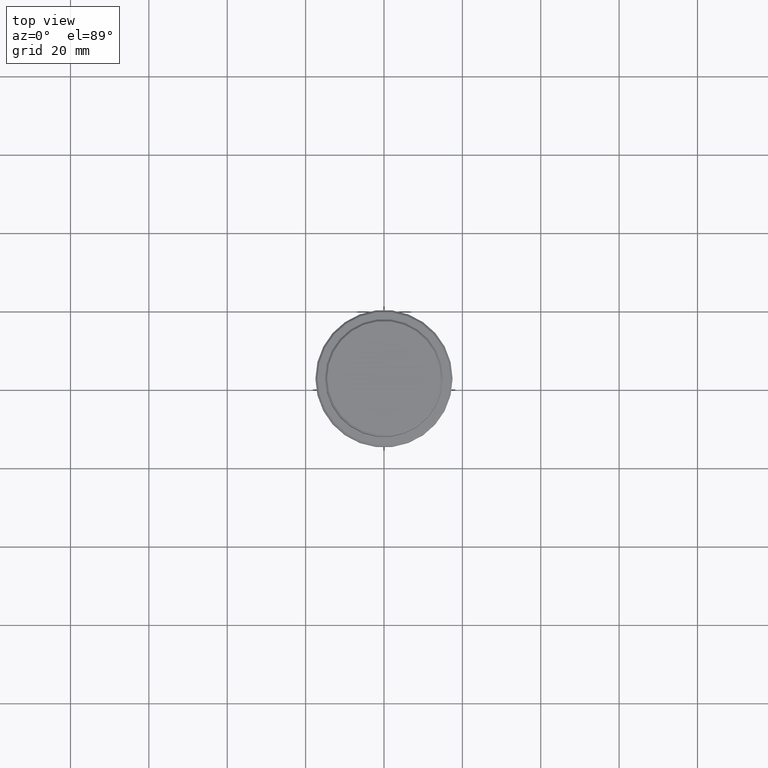
[diagram: clean part render]
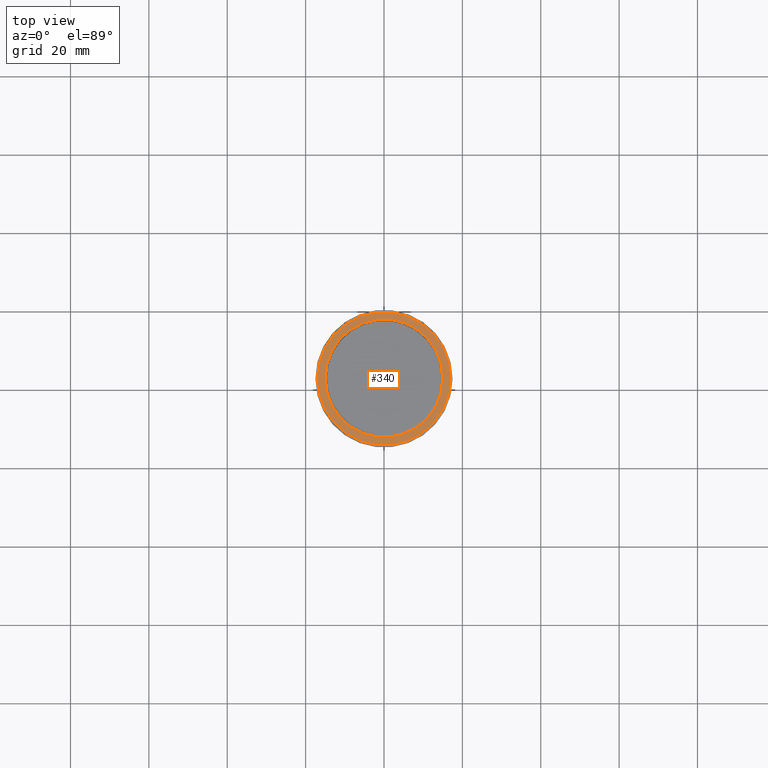
[diagram: same view with one face highlighted and labeled with its STEP entity id]
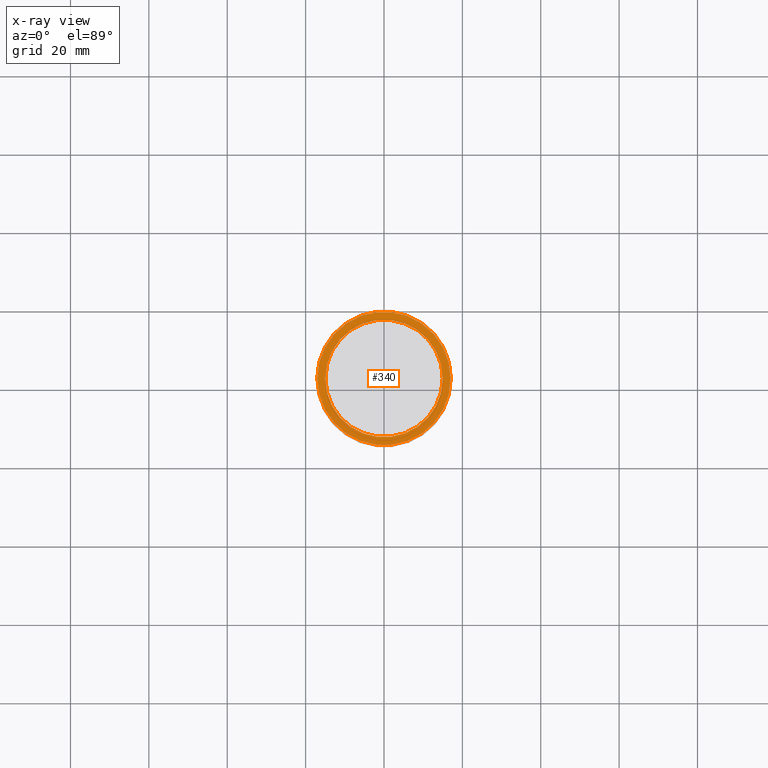
[diagram: x-ray of the same camera — body ghosted, the highlighted face saturated]
A machine part, top view. The second image highlights one B-rep face of the part: STEP entity #340.
The next image is the same camera in x-ray: the body ghosted, the highlighted face saturated — about 0% of this face is hidden behind the body in this view.
In plain terms, the highlighted planar face has unit normal (0, -0, 1).
Its self-contained STEP definition (entity closure, byte-faithful):
#38 = EDGE_CURVE ( 'NONE', #339, #1029, #1040, .T. ) ;
#62 = AXIS2_PLACEMENT_3D ( 'NONE', #1393, #735, #968 ) ;
#133 = CIRCLE ( 'NONE', #882, 14.99999999999999289 ) ;
#166 = VERTEX_POINT ( 'NONE', #264 ) ;
#212 = FACE_OUTER_BOUND ( 'NONE', #684, .T. ) ;
#227 = EDGE_CURVE ( 'NONE', #355, #166, #657, .T. ) ;
#244 = AXIS2_PLACEMENT_3D ( 'NONE', #753, #964, #511 ) ;
#264 = CARTESIAN_POINT ( 'NONE',  ( 14.99999999999999289, 0.000000000000000000, -9.000000000000000000 ) ) ;
#339 = VERTEX_POINT ( 'NONE', #518 ) ;
#340 = ADVANCED_FACE ( 'NONE', ( #212, #535 ), #541, .T. ) ;
#355 = VERTEX_POINT ( 'NONE', #1176 ) ;
#373 = CARTESIAN_POINT ( 'NONE',  ( 17.00000000000001421, 2.112515728529185250E-15, -9.000000000000000000 ) ) ;
#396 = EDGE_CURVE ( 'NONE', #166, #355, #133, .T. ) ;
#460 = CARTESIAN_POINT ( 'NONE',  ( 0.000000000000000000, 0.000000000000000000, -9.000000000000000000 ) ) ;
#511 = DIRECTION ( 'NONE',  ( 1.000000000000000000, 0.000000000000000000, 0.000000000000000000 ) ) ;
#518 = CARTESIAN_POINT ( 'NONE',  ( -17.00000000000001421, 0.000000000000000000, -9.000000000000000000 ) ) ;
#535 = FACE_BOUND ( 'NONE', #1376, .T. ) ;
#541 = PLANE ( 'NONE',  #62 ) ;
#648 = DIRECTION ( 'NONE',  ( 1.000000000000000000, 0.000000000000000000, 0.000000000000000000 ) ) ;
#657 = CIRCLE ( 'NONE', #1277, 14.99999999999999289 ) ;
#684 = EDGE_LOOP ( 'NONE', ( #948, #1251 ) ) ;
#731 = DIRECTION ( 'NONE',  ( 0.000000000000000000, 0.000000000000000000, -1.000000000000000000 ) ) ;
#735 = DIRECTION ( 'NONE',  ( 0.000000000000000000, -0.000000000000000000, 1.000000000000000000 ) ) ;
#753 = CARTESIAN_POINT ( 'NONE',  ( 0.000000000000000000, 0.000000000000000000, -9.000000000000000000 ) ) ;
#841 = CARTESIAN_POINT ( 'NONE',  ( 0.000000000000000000, 0.000000000000000000, -9.000000000000000000 ) ) ;
#882 = AXIS2_PLACEMENT_3D ( 'NONE', #841, #1399, #648 ) ;
#948 = ORIENTED_EDGE ( 'NONE', *, *, #38, .T. ) ;
#964 = DIRECTION ( 'NONE',  ( -0.000000000000000000, -0.000000000000000000, 1.000000000000000000 ) ) ;
#968 = DIRECTION ( 'NONE',  ( 1.000000000000000000, 0.000000000000000000, 0.000000000000000000 ) ) ;
#1029 = VERTEX_POINT ( 'NONE', #373 ) ;
#1040 = CIRCLE ( 'NONE', #1316, 17.00000000000001421 ) ;
#1097 = DIRECTION ( 'NONE',  ( 1.000000000000000000, 0.000000000000000000, 0.000000000000000000 ) ) ;
#1176 = CARTESIAN_POINT ( 'NONE',  ( -14.99999999999999289, 1.836970198721028800E-15, -9.000000000000000000 ) ) ;
#1212 = EDGE_CURVE ( 'NONE', #1029, #339, #1246, .T. ) ;
#1234 = DIRECTION ( 'NONE',  ( -0.000000000000000000, -0.000000000000000000, 1.000000000000000000 ) ) ;
#1246 = CIRCLE ( 'NONE', #244, 17.00000000000001421 ) ;
#1251 = ORIENTED_EDGE ( 'NONE', *, *, #1212, .T. ) ;
#1265 = DIRECTION ( 'NONE',  ( 1.000000000000000000, 0.000000000000000000, 0.000000000000000000 ) ) ;
#1277 = AXIS2_PLACEMENT_3D ( 'NONE', #1345, #731, #1265 ) ;
#1308 = ORIENTED_EDGE ( 'NONE', *, *, #227, .T. ) ;
#1316 = AXIS2_PLACEMENT_3D ( 'NONE', #460, #1234, #1097 ) ;
#1345 = CARTESIAN_POINT ( 'NONE',  ( 0.000000000000000000, 0.000000000000000000, -9.000000000000000000 ) ) ;
#1349 = ORIENTED_EDGE ( 'NONE', *, *, #396, .T. ) ;
#1376 = EDGE_LOOP ( 'NONE', ( #1349, #1308 ) ) ;
#1393 = CARTESIAN_POINT ( 'NONE',  ( 0.000000000000000000, 14.49999999999999467, -9.000000000000000000 ) ) ;
#1399 = DIRECTION ( 'NONE',  ( 0.000000000000000000, 0.000000000000000000, -1.000000000000000000 ) ) ;